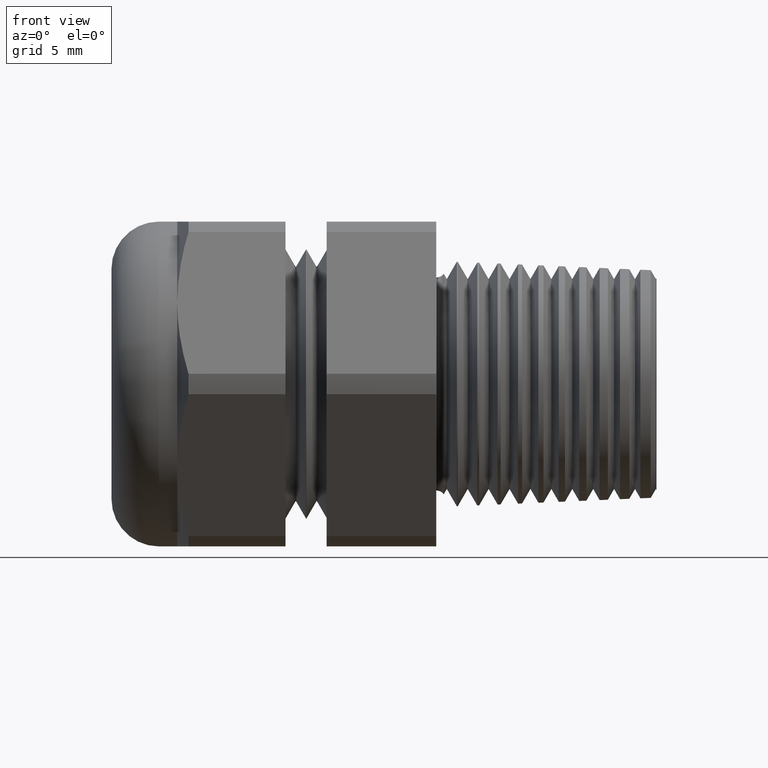
[diagram: clean part render]
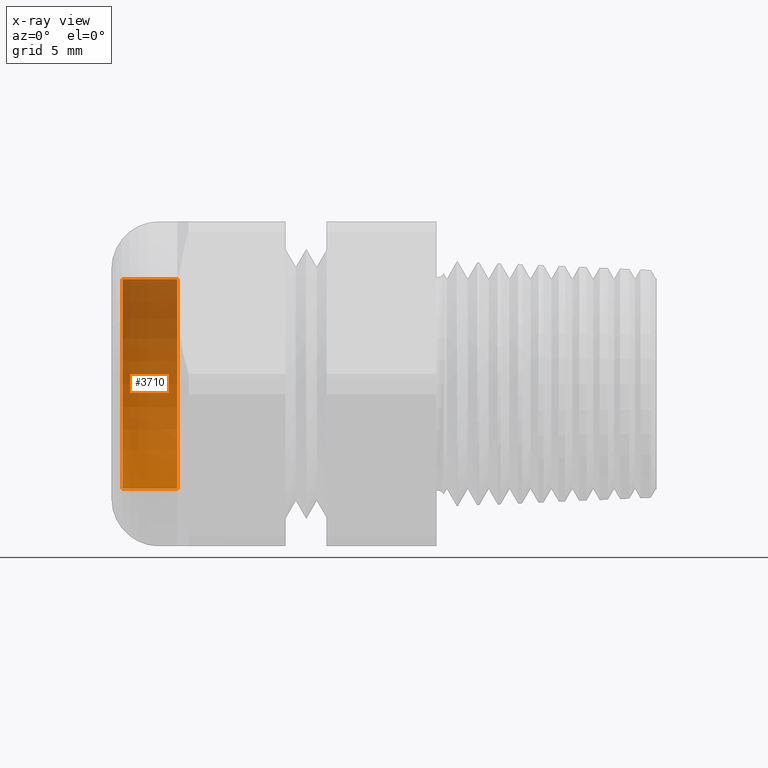
[diagram: x-ray — body ghosted, one internal face saturated and labeled with its STEP entity id]
A machine part, front view, then the same camera in x-ray: the body is ghosted and one INTERNAL B-rep face — a face not visible from any outside direction — is saturated and labeled: STEP entity #3710.
In plain terms, the highlighted cylindrical surface (partial cylindrical patch) has radius 7.1247 mm, axis along (1, 0, 0).
Its self-contained STEP definition (entity closure, byte-faithful):
#1 = VERTEX_POINT ( 'NONE', #1219 ) ;
#4 = EDGE_CURVE ( 'NONE', #5, #1, #1212, .T. ) ;
#5 = VERTEX_POINT ( 'NONE', #1208 ) ;
#9 = VERTEX_POINT ( 'NONE', #1206 ) ;
#10 = ORIENTED_EDGE ( 'NONE', *, *, #26, .F. ) ;
#11 = VERTEX_POINT ( 'NONE', #1205 ) ;
#26 = EDGE_CURVE ( 'NONE', #5, #9, #1236, .T. ) ;
#27 = EDGE_CURVE ( 'NONE', #9, #11, #1297, .T. ) ;
#28 = ORIENTED_EDGE ( 'NONE', *, *, #27, .F. ) ;
#31 = ORIENTED_EDGE ( 'NONE', *, *, #32, .T. ) ;
#32 = EDGE_CURVE ( 'NONE', #1, #11, #1290, .T. ) ;
#1205 = CARTESIAN_POINT ( 'NONE',  ( -0.6937499999999999800, 3.435134271608326200E-017, 0.2805000000000000300 ) ) ;
#1206 = CARTESIAN_POINT ( 'NONE',  ( -0.6937499999999999800, 0.0000000000000000000, -0.2805000000000000300 ) ) ;
#1208 = CARTESIAN_POINT ( 'NONE',  ( -0.8399999999999999700, 0.0000000000000000000, -0.2805000000000000300 ) ) ;
#1209 = DIRECTION ( 'NONE',  ( 0.0000000000000000000, 0.0000000000000000000, 1.000000000000000000 ) ) ;
#1210 = DIRECTION ( 'NONE',  ( 1.000000000000000000, 0.0000000000000000000, 0.0000000000000000000 ) ) ;
#1211 = AXIS2_PLACEMENT_3D ( 'NONE', #1218, #1210, #1209 ) ;
#1212 = CIRCLE ( 'NONE', #1211, 0.2805000000000000300 ) ;
#1218 = CARTESIAN_POINT ( 'NONE',  ( -0.8399999999999999700, 0.0000000000000000000, 0.0000000000000000000 ) ) ;
#1219 = CARTESIAN_POINT ( 'NONE',  ( -0.8399999999999999700, 3.435134271608326200E-017, 0.2805000000000000300 ) ) ;
#1233 = DIRECTION ( 'NONE',  ( 1.000000000000000000, 0.0000000000000000000, 0.0000000000000000000 ) ) ;
#1234 = VECTOR ( 'NONE', #1233, 39.37007874015748100 ) ;
#1235 = CARTESIAN_POINT ( 'NONE',  ( 0.3423310023310022200, 0.0000000000000000000, -0.2805000000000000300 ) ) ;
#1236 = LINE ( 'NONE', #1235, #1234 ) ;
#1287 = DIRECTION ( 'NONE',  ( 1.000000000000000000, 0.0000000000000000000, 0.0000000000000000000 ) ) ;
#1288 = VECTOR ( 'NONE', #1287, 39.37007874015748100 ) ;
#1289 = CARTESIAN_POINT ( 'NONE',  ( 0.3423310023310022200, 3.435134271608326200E-017, 0.2805000000000000300 ) ) ;
#1290 = LINE ( 'NONE', #1289, #1288 ) ;
#1293 = DIRECTION ( 'NONE',  ( 0.0000000000000000000, 0.0000000000000000000, -1.000000000000000000 ) ) ;
#1294 = DIRECTION ( 'NONE',  ( 1.000000000000000000, 0.0000000000000000000, 0.0000000000000000000 ) ) ;
#1295 = CARTESIAN_POINT ( 'NONE',  ( -0.6937499999999999800, 0.0000000000000000000, 0.0000000000000000000 ) ) ;
#1296 = AXIS2_PLACEMENT_3D ( 'NONE', #1295, #1294, #1293 ) ;
#1297 = CIRCLE ( 'NONE', #1296, 0.2805000000000000300 ) ;
#3505 = DIRECTION ( 'NONE',  ( 0.0000000000000000000, 0.0000000000000000000, -1.000000000000000000 ) ) ;
#3506 = DIRECTION ( 'NONE',  ( 1.000000000000000000, 0.0000000000000000000, 0.0000000000000000000 ) ) ;
#3507 = CARTESIAN_POINT ( 'NONE',  ( 0.3423310023310022200, 0.0000000000000000000, 0.0000000000000000000 ) ) ;
#3508 = AXIS2_PLACEMENT_3D ( 'NONE', #3507, #3506, #3505 ) ;
#3509 = CYLINDRICAL_SURFACE ( 'NONE', #3508, 0.2805000000000000300 ) ;
#3511 = FACE_OUTER_BOUND ( 'NONE', #3706, .T. ) ;
#3706 = EDGE_LOOP ( 'NONE', ( #3708, #31, #28, #10 ) ) ;
#3708 = ORIENTED_EDGE ( 'NONE', *, *, #4, .T. ) ;
#3710 = ADVANCED_FACE ( 'NONE', ( #3511 ), #3509, .T. ) ;